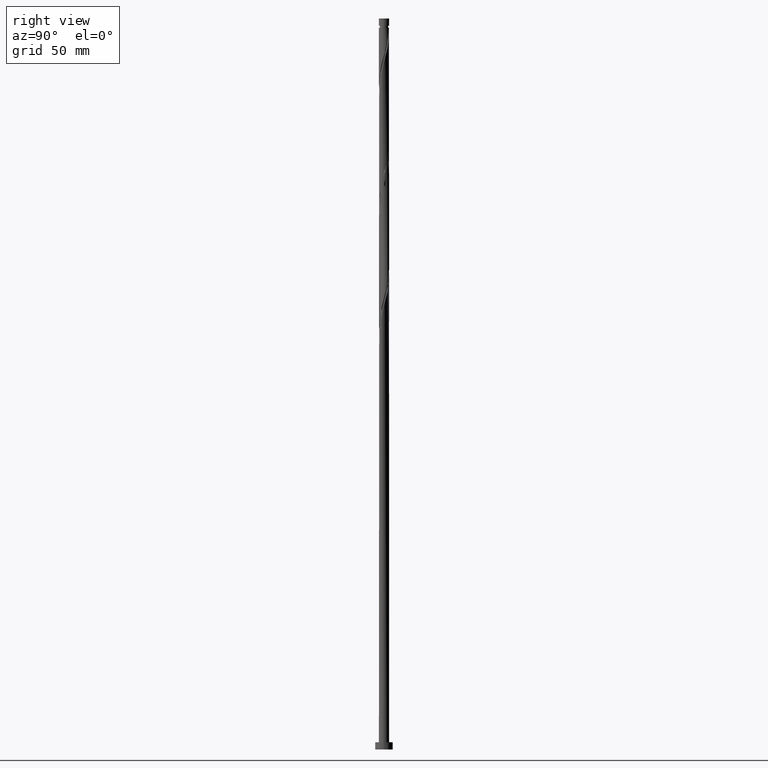
[diagram: clean part render]
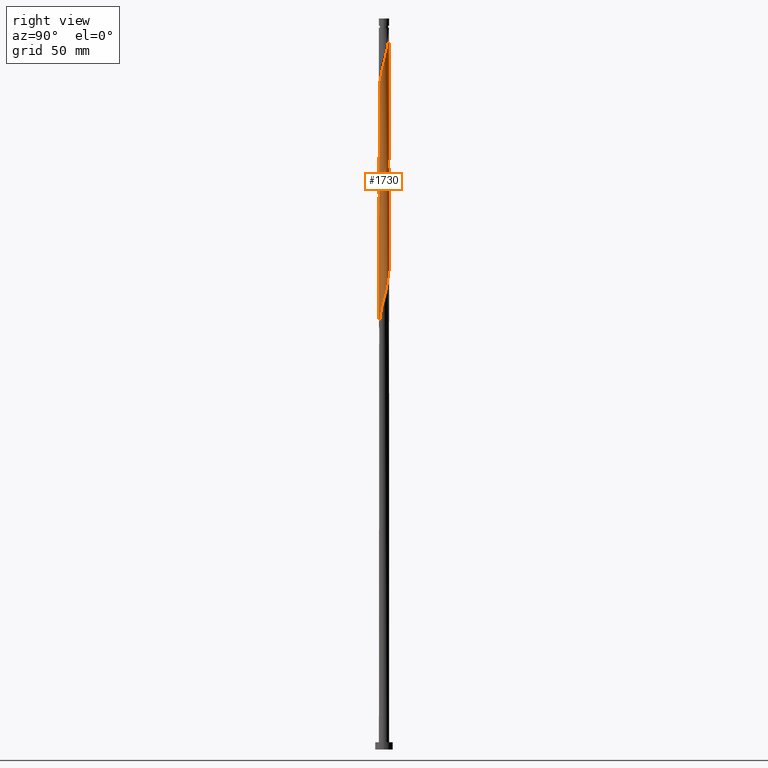
[diagram: same view with one face highlighted and labeled with its STEP entity id]
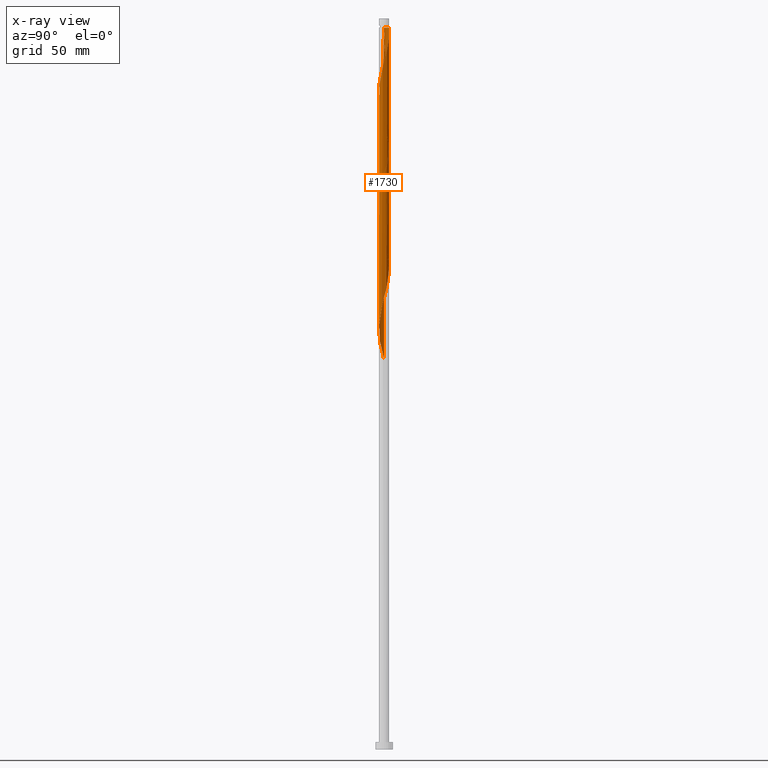
[diagram: x-ray of the same camera — body ghosted, the highlighted face saturated]
A machine part, right view. The second image highlights one B-rep face of the part: STEP entity #1730.
The next image is the same camera in x-ray: the body ghosted, the highlighted face saturated — about 0% of this face is hidden behind the body in this view.
In plain terms, the highlighted cylindrical surface (bore or boss wall) has radius 3.5 mm, axis along (-0, -0, -1).
Its self-contained STEP definition (entity closure, byte-faithful):
#6 = CARTESIAN_POINT ( 'NONE',  ( 0.6964912059746388717, -3.430000000000003268, 451.9630982235522083 ) ) ;
#7 = EDGE_CURVE ( 'NONE', #717, #657, #689, .T. ) ;
#13 = CARTESIAN_POINT ( 'NONE',  ( -2.917869914251320473, -1.932882604688393346, 274.8797648902188371 ) ) ;
#20 = CARTESIAN_POINT ( 'NONE',  ( 1.007491750486607440, -3.369538869082595589, 375.1401815568857501 ) ) ;
#26 = CARTESIAN_POINT ( 'NONE',  ( -1.352268127265541464, -3.228214818128085195, 282.6922648902188939 ) ) ;
#30 = CARTESIAN_POINT ( 'NONE',  ( 0.3307686559897634604, -3.501346014573782028, 372.5360148902190076 ) ) ;
#57 = AXIS2_PLACEMENT_3D ( 'NONE', #207, #816, #1431 ) ;
#58 = ORIENTED_EDGE ( 'NONE', *, *, #381, .T. ) ;
#67 = VERTEX_POINT ( 'NONE', #1469 ) ;
#75 = CARTESIAN_POINT ( 'NONE',  ( 2.709714269839936129, -2.241936750531291267, 299.6193482235523220 ) ) ;
#83 = CYLINDRICAL_SURFACE ( 'NONE', #57, 3.500000000000000000 ) ;
#86 = CARTESIAN_POINT ( 'NONE',  ( -3.499972205438072859, 0.01394851823490067012, 350.4005982235523788 ) ) ;
#101 = CARTESIAN_POINT ( 'NONE',  ( -3.095028032558539088, 1.670219535041367775, 427.2235148902189508 ) ) ;
#144 = CARTESIAN_POINT ( 'NONE',  ( -2.220267707356660125, -2.727497593990912517, 440.2443482235523220 ) ) ;
#153 = CARTESIAN_POINT ( 'NONE',  ( 3.500000000000000000, 4.286263797015736595E-16, 493.6297648902190076 ) ) ;
#158 = CARTESIAN_POINT ( 'NONE',  ( -1.956078142786329632, -2.902371151199237165, 280.0880982235522652 ) ) ;
#160 = CARTESIAN_POINT ( 'NONE',  ( 3.238890551797164452, 1.326494626253368780, 397.2755982235522652 ) ) ;
#162 =( BOUNDED_CURVE ( )  B_SPLINE_CURVE ( 2, ( #450, #1669, #906, #754, #1510, #766, #459, #1692, #1377, #1980, #927, #144, #623, #1533, #164, #1950, #1367, #935, #1386, #1072, #6, #1220, #1822, #1242, #1842, #332, #1345, #1125, #1866, #1252, #1564, #365, #175, #799, #1114, #521, #1728, #988, #1271, #1138, #500, #201, #212, #1714, #643, #1425, #958, #979, #531, #810, #1853, #785, #1149 ),
 .UNSPECIFIED., .F., .T. ) 
 B_SPLINE_CURVE_WITH_KNOTS ( ( 3, 2, 2, 2, 2, 2, 2, 2, 2, 2, 2, 2, 2, 2, 2, 2, 2, 2, 2, 2, 2, 2, 2, 2, 2, 2, 3 ),
 ( 0.5545286902180872612, 0.5546875000000000000, 0.5625000000000000000, 0.5703125000000000000, 0.5781250000000000000, 0.5859375000000000000, 0.5937500000000000000, 0.6015625000000000000, 0.6093750000000001110, 0.6171875000000001110, 0.6250000000000001110, 0.6328125000000001110, 0.6406250000000001110, 0.6484375000000001110, 0.6562500000000001110, 0.6640625000000001110, 0.6718750000000001110, 0.6796875000000001110, 0.6875000000000001110, 0.6953125000000001110, 0.7031250000000002220, 0.7109375000000002220, 0.7187500000000002220, 0.7265625000000002220, 0.7343750000000002220, 0.7421875000000002220, 0.7500000000000002220 ),
 .UNSPECIFIED. ) 
 CURVE ( )  GEOMETRIC_REPRESENTATION_ITEM ( )  RATIONAL_B_SPLINE_CURVE ( ( 0.9089165573359736516, 0.9090019243628784107, 0.9090909090909701229, 0.9047133878838761190, 0.9090909090909701229, 0.9047133878838761190, 0.9090909090909701229, 0.9047133878838761190, 0.9090909090909701229, 0.9047133878838761190, 0.9090909090909701229, 0.9047133878838761190, 0.9090909090909701229, 0.9047133878838761190, 0.9090909090909701229, 0.9047133878838761190, 0.9090909090909701229, 0.9047133878838761190, 0.9090909090909701229, 0.9047133878838761190, 0.9090909090909701229, 0.9047133878838761190, 0.9090909090909701229, 0.9047133878838761190, 0.9090909090909701229, 0.9047133878838761190, 0.9090909090909701229, 0.9047133878838761190, 0.9090909090909701229, 0.9047133878838761190, 0.9090909090909701229, 0.9047133878838761190, 0.9090909090909701229, 0.9047133878838761190, 0.9090909090909701229, 0.9047133878838761190, 0.9090909090909701229, 0.9047133878838761190, 0.9090909090909701229, 0.9047133878838761190, 0.9090909090909701229, 0.9047133878838761190, 0.9090909090909701229, 0.9047133878838761190, 0.9090909090909701229, 0.9047133878838761190, 0.9090909090909701229, 0.9047133878838761190, 0.9090909090909701229, 0.9047133878838761190, 0.9090909090909701229, 0.9047133878838760079, 0.9090909090909702339 ) ) 
 REPRESENTATION_ITEM ( '' )  );
#164 = CARTESIAN_POINT ( 'NONE',  ( -1.326494626253372111, -3.238890551797168005, 444.1505982235523220 ) ) ;
#169 = CARTESIAN_POINT ( 'NONE',  ( 1.645497502020132119, -3.108242234511732427, 294.4110148902188371 ) ) ;
#174 = CARTESIAN_POINT ( 'NONE',  ( 3.228214818128085195, -1.352268127265541464, 386.8589315568855795 ) ) ;
#175 = CARTESIAN_POINT ( 'NONE',  ( 3.435442441828192806, -0.6691302032381893916, 467.5880982235523788 ) ) ;
#178 = EDGE_LOOP ( 'NONE', ( #801, #836, #1285, #58, #235, #355, #634, #1611 ) ) ;
#182 = CARTESIAN_POINT ( 'NONE',  ( 0.6691302032381857279, -3.435442441828187476, 290.5047648902188939 ) ) ;
#187 = CARTESIAN_POINT ( 'NONE',  ( 1.645497502020132119, -3.108242234511732427, 377.7443482235522083 ) ) ;
#194 = CARTESIAN_POINT ( 'NONE',  ( 2.727497593990911184, 2.220267707356653464, 401.1818482235522652 ) ) ;
#201 = CARTESIAN_POINT ( 'NONE',  ( 2.709714269839941014, 2.241936750531293487, 479.3068482235524925 ) ) ;
#207 = CARTESIAN_POINT ( 'NONE',  ( 0.000000000000000000, 0.000000000000000000, 500.0000000000000000 ) ) ;
#211 = CARTESIAN_POINT ( 'NONE',  ( -2.727497593990910296, -2.220267707356655240, 359.5151815568855795 ) ) ;
#212 = CARTESIAN_POINT ( 'NONE',  ( 2.464990988598299904, 2.484717172261102558, 480.6089315568856932 ) ) ;
#221 = CARTESIAN_POINT ( 'NONE',  ( 3.499972205438073303, -0.01394851823490035093, 392.0672648902189508 ) ) ;
#234 = CARTESIAN_POINT ( 'NONE',  ( 3.369538869082595589, 1.007491750486607218, 312.6401815568855227 ) ) ;
#235 = ORIENTED_EDGE ( 'NONE', *, *, #406, .F. ) ;
#243 = CARTESIAN_POINT ( 'NONE',  ( -3.228214818128085195, 1.352268127265539910, 345.1922648902189508 ) ) ;
#253 = CARTESIAN_POINT ( 'NONE',  ( -2.902371151199237165, 1.956078142786329632, 342.5880982235523220 ) ) ;
#271 = CARTESIAN_POINT ( 'NONE',  ( -2.220267707356654796, 2.727497593990910296, 422.0151815568854659 ) ) ;
#277 = CARTESIAN_POINT ( 'NONE',  ( -0.6691302032381861720, 3.435442441828187476, 415.5047648902188939 ) ) ;
#299 = CARTESIAN_POINT ( 'NONE',  ( 2.727497593990911184, 2.220267707356653464, 317.8485148902188939 ) ) ;
#311 =( BOUNDED_CURVE ( )  B_SPLINE_CURVE ( 2, ( #1436, #1124, #221, #1405, #499, #1241, #174, #1396, #509, #1841, #1727, #1885, #364, #187, #482, #20, #1414, #30, #947, #353, #631, #957, #1573, #1251, #491, #1563, #653, #211, #819, #1102, #1424, #520, #978, #1749, #86, #1467, #1290, #1303, #243, #1015, #253, #549, #1616, #1166, #1172, #1768, #1804, #696, #412, #998, #1349, #1626, #888, #1903, #738, #1053, #1204, #842, #443, #299, #1309, #901, #404, #234, #851, #1446, #541, #385, #687, #1894, #1505, #530, #1148, #75, #749, #1975, #913, #169, #780, #793, #182, #1686, #1237, #1527, #1673, #1516, #26, #952, #158, #930, #1963, #477, #13, #1066, #1391, #1382, #1546, #637, #495 ),
 .UNSPECIFIED., .F., .T. ) 
 B_SPLINE_CURVE_WITH_KNOTS ( ( 3, 2, 2, 2, 2, 2, 2, 2, 2, 2, 2, 2, 2, 2, 2, 2, 2, 2, 2, 2, 2, 2, 2, 2, 2, 2, 2, 2, 2, 2, 2, 2, 2, 2, 2, 2, 2, 2, 2, 2, 2, 2, 2, 2, 2, 2, 2, 2, 2, 3 ),
 ( 0.5545286902180871502, 0.5546875000000000000, 0.5625000000000000000, 0.5703125000000000000, 0.5781250000000000000, 0.5859375000000000000, 0.5937500000000000000, 0.6015625000000000000, 0.6093750000000000000, 0.6171875000000000000, 0.6250000000000000000, 0.6328125000000000000, 0.6406250000000000000, 0.6484375000000000000, 0.6562500000000000000, 0.6640625000000000000, 0.6718750000000000000, 0.6796875000000000000, 0.6875000000000000000, 0.6953125000000000000, 0.7031250000000000000, 0.7109375000000000000, 0.7187500000000000000, 0.7265625000000000000, 0.7343750000000000000, 0.7421875000000000000, 0.7500000000000000000, 0.7578125000000000000, 0.7656250000000000000, 0.7734375000000000000, 0.7812500000000000000, 0.7890625000000000000, 0.7968750000000000000, 0.8046875000000000000, 0.8125000000000000000, 0.8203125000000000000, 0.8281250000000000000, 0.8359375000000000000, 0.8437500000000000000, 0.8515625000000000000, 0.8593750000000000000, 0.8671875000000000000, 0.8750000000000000000, 0.8828125000000000000, 0.8906250000000000000, 0.8984375000000000000, 0.9062500000000000000, 0.9140625000000000000, 0.9218750000000000000, 0.9295286902180872612 ),
 .UNSPECIFIED. ) 
 CURVE ( )  GEOMETRIC_REPRESENTATION_ITEM ( )  RATIONAL_B_SPLINE_CURVE ( ( 0.9089165573359687667, 0.9090019243628735257, 0.9090909090909653489, 0.9047133878838712340, 0.9090909090909653489, 0.9047133878838712340, 0.9090909090909653489, 0.9047133878838712340, 0.9090909090909653489, 0.9047133878838712340, 0.9090909090909653489, 0.9047133878838712340, 0.9090909090909653489, 0.9047133878838712340, 0.9090909090909653489, 0.9047133878838712340, 0.9090909090909653489, 0.9047133878838712340, 0.9090909090909653489, 0.9047133878838712340, 0.9090909090909653489, 0.9047133878838712340, 0.9090909090909653489, 0.9047133878838712340, 0.9090909090909653489, 0.9047133878838712340, 0.9090909090909653489, 0.9047133878838712340, 0.9090909090909653489, 0.9047133878838712340, 0.9090909090909653489, 0.9047133878838712340, 0.9090909090909653489, 0.9047133878838712340, 0.9090909090909653489, 0.9047133878838712340, 0.9090909090909653489, 0.9047133878838712340, 0.9090909090909653489, 0.9047133878838712340, 0.9090909090909653489, 0.9047133878838712340, 0.9090909090909653489, 0.9047133878838712340, 0.9090909090909653489, 0.9047133878838712340, 0.9090909090909653489, 0.9047133878838712340, 0.9090909090909653489, 0.9047133878838712340, 0.9090909090909653489, 0.9047133878838712340, 0.9090909090909653489, 0.9047133878838712340, 0.9090909090909653489, 0.9047133878838712340, 0.9090909090909653489, 0.9047133878838712340, 0.9090909090909653489, 0.9047133878838712340, 0.9090909090909653489, 0.9047133878838712340, 0.9090909090909653489, 0.9047133878838712340, 0.9090909090909653489, 0.9047133878838712340, 0.9090909090909653489, 0.9047133878838712340, 0.9090909090909653489, 0.9047133878838712340, 0.9090909090909653489, 0.9047133878838712340, 0.9090909090909653489, 0.9047133878838712340, 0.9090909090909653489, 0.9047133878838712340, 0.9090909090909653489, 0.9047133878838712340, 0.9090909090909653489, 0.9047133878838712340, 0.9090909090909653489, 0.9047133878838712340, 0.9090909090909653489, 0.9047133878838712340, 0.9090909090909653489, 0.9047133878838712340, 0.9090909090909653489, 0.9047133878838712340, 0.9090909090909653489, 0.9047133878838712340, 0.9090909090909653489, 0.9047133878838712340, 0.9090909090909653489, 0.9047133878838712340, 0.9090909090909653489, 0.9047133878838712340, 0.9090909090909653489, 0.9048023726119630572, 0.9089165573359687667 ) ) 
 REPRESENTATION_ITEM ( '' )  );
#331 = CARTESIAN_POINT ( 'NONE',  ( -3.500000000000000000, 0.000000000000000000, 500.0000000000000000 ) ) ;
#332 = CARTESIAN_POINT ( 'NONE',  ( 2.241936750531293931, -2.709714269839941014, 458.4735148902190076 ) ) ;
#353 = CARTESIAN_POINT ( 'NONE',  ( -0.3586656924595654772, -3.498598396302364577, 369.9318482235522083 ) ) ;
#355 = ORIENTED_EDGE ( 'NONE', *, *, #7, .F. ) ;
#364 = CARTESIAN_POINT ( 'NONE',  ( 1.932882604688393346, -2.917869914251321362, 379.0464315568856932 ) ) ;
#365 = CARTESIAN_POINT ( 'NONE',  ( 3.369538869082599586, -1.007491750486610105, 466.2860148902190645 ) ) ;
#381 = EDGE_CURVE ( 'NONE', #1512, #1731, #1283, .T. ) ;
#385 = CARTESIAN_POINT ( 'NONE',  ( 3.498598396302364577, -0.3586656924595672535, 307.4318482235523788 ) ) ;
#404 = CARTESIAN_POINT ( 'NONE',  ( 3.238890551797164452, 1.326494626253368780, 313.9422648902188371 ) ) ;
#406 = EDGE_CURVE ( 'NONE', #657, #1731, #311, .T. ) ;
#411 = CARTESIAN_POINT ( 'NONE',  ( -3.429999999999999272, 0.6964912059746389827, 431.1297648902189508 ) ) ;
#412 = CARTESIAN_POINT ( 'NONE',  ( -0.6691302032381861720, 3.435442441828187476, 332.1714315568855227 ) ) ;
#421 = CARTESIAN_POINT ( 'NONE',  ( -1.326494626253369669, 3.238890551797163564, 418.1089315568855227 ) ) ;
#434 = EDGE_CURVE ( 'NONE', #678, #67, #640, .T. ) ;
#439 = CARTESIAN_POINT ( 'NONE',  ( 0.6964912059746396489, 3.429999999999999272, 410.2964315568856364 ) ) ;
#443 = CARTESIAN_POINT ( 'NONE',  ( 2.484717172261099893, 2.464990988598295907, 319.1505982235522652 ) ) ;
#450 = CARTESIAN_POINT ( 'NONE',  ( -3.500000000000005329, 1.465902249526861745E-15, 428.4729012455554198 ) ) ;
#456 = DIRECTION ( 'NONE',  ( -0.000000000000000000, -0.000000000000000000, -1.000000000000000000 ) ) ;
#459 = CARTESIAN_POINT ( 'NONE',  ( -3.228214818128090524, -1.352268127265541242, 433.7339315568856364 ) ) ;
#467 = CARTESIAN_POINT ( 'NONE',  ( -3.500000000000005329, 1.465902249526861745E-15, 428.4729012455554198 ) ) ;
#477 = CARTESIAN_POINT ( 'NONE',  ( -2.727497593990910296, -2.220267707356655240, 276.1818482235522652 ) ) ;
#482 = CARTESIAN_POINT ( 'NONE',  ( 1.326494626253369002, -3.238890551797164452, 376.4422648902189508 ) ) ;
#486 = CARTESIAN_POINT ( 'NONE',  ( 3.500000000000000888, 0.3376793522514339174, 393.3959419736319205 ) ) ;
#491 = CARTESIAN_POINT ( 'NONE',  ( -1.956078142786329632, -2.902371151199237165, 363.4214315568856364 ) ) ;
#495 = CARTESIAN_POINT ( 'NONE',  ( -3.499999999999999112, -6.113362210359989773E-16, 267.1199618682157393 ) ) ;
#499 = CARTESIAN_POINT ( 'NONE',  ( 3.429999999999999272, -0.6964912059746393158, 389.4630982235523220 ) ) ;
#500 = CARTESIAN_POINT ( 'NONE',  ( 2.902371151199241606, 1.956078142786332519, 478.0047648902190076 ) ) ;
#509 = CARTESIAN_POINT ( 'NONE',  ( 2.902371151199235833, -1.956078142786330964, 384.2547648902188939 ) ) ;
#520 = CARTESIAN_POINT ( 'NONE',  ( -3.369538869082595589, -1.007491750486607662, 354.3068482235523220 ) ) ;
#521 = CARTESIAN_POINT ( 'NONE',  ( 3.498598396302370794, 0.3586656924595661433, 471.4943482235523220 ) ) ;
#530 = CARTESIAN_POINT ( 'NONE',  ( 3.095028032558538644, -1.670219535041368442, 302.2235148902189508 ) ) ;
#531 = CARTESIAN_POINT ( 'NONE',  ( 0.6691302032381896137, 3.435442441828192806, 488.4214315568857501 ) ) ;
#541 = CARTESIAN_POINT ( 'NONE',  ( 3.499972205438073303, -0.01394851823490035093, 308.7339315568855795 ) ) ;
#549 = CARTESIAN_POINT ( 'NONE',  ( -2.709714269839936129, 2.241936750531290823, 341.2860148902188939 ) ) ;
#584 = CARTESIAN_POINT ( 'NONE',  ( 0.3586656924595654217, 3.498598396302364577, 411.5985148902189508 ) ) ;
#601 = CARTESIAN_POINT ( 'NONE',  ( 2.484717172261099893, 2.464990988598295907, 402.4839315568856364 ) ) ;
#623 = CARTESIAN_POINT ( 'NONE',  ( -1.932882604688397343, -2.917869914251324914, 441.5464315568856932 ) ) ;
#631 = CARTESIAN_POINT ( 'NONE',  ( -0.6964912059746392048, -3.429999999999999272, 368.6297648902189508 ) ) ;
#634 = ORIENTED_EDGE ( 'NONE', *, *, #7, .T. ) ;
#637 = CARTESIAN_POINT ( 'NONE',  ( -3.500000000000001332, -0.3376793522514293655, 268.3959419736317500 ) ) ;
#638 = CARTESIAN_POINT ( 'NONE',  ( 1.956078142786331409, 2.902371151199235833, 405.0880982235523220 ) ) ;
#640 = CIRCLE ( 'NONE', #899, 3.499999999999952038 ) ;
#643 = CARTESIAN_POINT ( 'NONE',  ( 1.932882604688397565, 2.917869914251324470, 483.2130982235523788 ) ) ;
#653 = CARTESIAN_POINT ( 'NONE',  ( -2.484717172261099893, -2.464990988598296351, 360.8172648902188939 ) ) ;
#657 = VERTEX_POINT ( 'NONE', #869 ) ;
#678 = VERTEX_POINT ( 'NONE', #1200 ) ;
#687 = CARTESIAN_POINT ( 'NONE',  ( 3.429999999999999272, -0.6964912059746393158, 306.1297648902189508 ) ) ;
#689 = LINE ( 'NONE', #1628, #1789 ) ;
#691 = FACE_OUTER_BOUND ( 'NONE', #178, .T. ) ;
#696 = CARTESIAN_POINT ( 'NONE',  ( -1.007491750486607440, 3.369538869082595589, 333.4735148902189508 ) ) ;
#715 = CARTESIAN_POINT ( 'NONE',  ( -2.902371151199237165, 1.956078142786329632, 425.9214315568856364 ) ) ;
#717 = VERTEX_POINT ( 'NONE', #153 ) ;
#730 = CARTESIAN_POINT ( 'NONE',  ( -3.499972205438072859, 0.01394851823490067012, 433.7339315568856932 ) ) ;
#738 = CARTESIAN_POINT ( 'NONE',  ( 1.352268127265541464, 3.228214818128085195, 324.3589315568856364 ) ) ;
#749 = CARTESIAN_POINT ( 'NONE',  ( 2.464990988598295907, -2.484717172261099893, 298.3172648902188939 ) ) ;
#754 = CARTESIAN_POINT ( 'NONE',  ( -3.498598396302370794, -0.3586656924595649221, 429.8276815568856932 ) ) ;
#761 = DIRECTION ( 'NONE',  ( -1.000000000000000000, 0.000000000000000000, 0.000000000000000000 ) ) ;
#766 = CARTESIAN_POINT ( 'NONE',  ( -3.361401603697638851, -1.034316719489713376, 432.4318482235522652 ) ) ;
#780 = CARTESIAN_POINT ( 'NONE',  ( 1.326494626253369002, -3.238890551797164452, 293.1089315568856364 ) ) ;
#785 = CARTESIAN_POINT ( 'NONE',  ( -0.3586656924595756912, 3.498598396302370350, 492.3276815568856932 ) ) ;
#793 = CARTESIAN_POINT ( 'NONE',  ( 1.007491750486607440, -3.369538869082595589, 291.8068482235523220 ) ) ;
#799 = CARTESIAN_POINT ( 'NONE',  ( 3.501346014573786913, -0.3307686559897658474, 468.8901815568856364 ) ) ;
#801 = ORIENTED_EDGE ( 'NONE', *, *, #1515, .F. ) ;
#810 = CARTESIAN_POINT ( 'NONE',  ( 0.3307686559897658474, 3.501346014573786913, 489.7235148902190076 ) ) ;
#816 = DIRECTION ( 'NONE',  ( -0.000000000000000000, -0.000000000000000000, -1.000000000000000000 ) ) ;
#819 = CARTESIAN_POINT ( 'NONE',  ( -2.917869914251320473, -1.932882604688393346, 358.2130982235522652 ) ) ;
#836 = ORIENTED_EDGE ( 'NONE', *, *, #434, .T. ) ;
#839 = CARTESIAN_POINT ( 'NONE',  ( -3.499999999999999112, -6.113362210359989773E-16, 267.1199618682157393 ) ) ;
#842 = CARTESIAN_POINT ( 'NONE',  ( 2.241936750531291267, 2.709714269839936129, 320.4526815568856364 ) ) ;
#851 = CARTESIAN_POINT ( 'NONE',  ( 3.435442441828187032, 0.6691302032381868381, 311.3380982235522083 ) ) ;
#857 =( BOUNDED_CURVE ( )  B_SPLINE_CURVE ( 2, ( #1633, #903, #730, #1795, #411, #1474, #1786, #101, #715, #1034, #1927, #271, #1640, #1180, #421, #875, #277, #882, #1340, #584, #439, #1046, #1559, #1099, #638, #941, #601, #194, #1837, #923, #160, #1529, #953, #486, #1538 ),
 .UNSPECIFIED., .F., .T. ) 
 B_SPLINE_CURVE_WITH_KNOTS ( ( 3, 2, 2, 2, 2, 2, 2, 2, 2, 2, 2, 2, 2, 2, 2, 2, 2, 3 ),
 ( 0.4295286902180872057, 0.4296875000000000000, 0.4375000000000000000, 0.4453125000000000000, 0.4531250000000000000, 0.4609375000000000000, 0.4687500000000000000, 0.4765625000000000000, 0.4843750000000000000, 0.4921875000000000000, 0.5000000000000000000, 0.5078125000000000000, 0.5156250000000000000, 0.5234375000000000000, 0.5312500000000000000, 0.5390625000000000000, 0.5468750000000000000, 0.5545286902180871502 ),
 .UNSPECIFIED. ) 
 CURVE ( )  GEOMETRIC_REPRESENTATION_ITEM ( )  RATIONAL_B_SPLINE_CURVE ( ( 0.9089165573359687667, 0.9090019243628735257, 0.9090909090909653489, 0.9047133878838712340, 0.9090909090909653489, 0.9047133878838712340, 0.9090909090909653489, 0.9047133878838712340, 0.9090909090909653489, 0.9047133878838712340, 0.9090909090909653489, 0.9047133878838712340, 0.9090909090909653489, 0.9047133878838712340, 0.9090909090909653489, 0.9047133878838712340, 0.9090909090909653489, 0.9047133878838712340, 0.9090909090909653489, 0.9047133878838712340, 0.9090909090909653489, 0.9047133878838712340, 0.9090909090909653489, 0.9047133878838712340, 0.9090909090909653489, 0.9047133878838712340, 0.9090909090909653489, 0.9047133878838712340, 0.9090909090909653489, 0.9047133878838712340, 0.9090909090909653489, 0.9047133878838712340, 0.9090909090909653489, 0.9048023726119630572, 0.9089165573359687667 ) ) 
 REPRESENTATION_ITEM ( '' )  );
#869 = CARTESIAN_POINT ( 'NONE',  ( 3.500000000000000000, 9.039575219587180141E-16, 392.1199618682157961 ) ) ;
#875 = CARTESIAN_POINT ( 'NONE',  ( -1.007491750486607440, 3.369538869082595589, 416.8068482235523220 ) ) ;
#882 = CARTESIAN_POINT ( 'NONE',  ( -0.3307686559897644041, 3.501346014573782028, 414.2026815568856364 ) ) ;
#888 = CARTESIAN_POINT ( 'NONE',  ( 0.6964912059746396489, 3.429999999999999272, 326.9630982235522083 ) ) ;
#899 = AXIS2_PLACEMENT_3D ( 'NONE', #1216, #1847, #761 ) ;
#901 = CARTESIAN_POINT ( 'NONE',  ( 3.108242234511731983, 1.645497502020133007, 315.2443482235523220 ) ) ;
#903 = CARTESIAN_POINT ( 'NONE',  ( -3.499999999999999556, 0.006974286809916272617, 433.7602749803652955 ) ) ;
#906 = CARTESIAN_POINT ( 'NONE',  ( -3.499972205438078632, -0.01394851823489984613, 428.5255982235523788 ) ) ;
#913 = CARTESIAN_POINT ( 'NONE',  ( 1.932882604688393346, -2.917869914251321362, 295.7130982235522652 ) ) ;
#923 = CARTESIAN_POINT ( 'NONE',  ( 3.108242234511731983, 1.645497502020133007, 398.5776815568856364 ) ) ;
#927 = CARTESIAN_POINT ( 'NONE',  ( -2.464990988598299460, -2.484717172261102558, 438.9422648902188939 ) ) ;
#930 = CARTESIAN_POINT ( 'NONE',  ( -2.241936750531290823, -2.709714269839936129, 278.7860148902190076 ) ) ;
#935 = CARTESIAN_POINT ( 'NONE',  ( -0.3307686559897656253, -3.501346014573786913, 448.0568482235523788 ) ) ;
#941 = CARTESIAN_POINT ( 'NONE',  ( 2.241936750531291267, 2.709714269839936129, 403.7860148902190076 ) ) ;
#947 = CARTESIAN_POINT ( 'NONE',  ( -0.01394851823490014277, -3.499972205438073303, 371.2339315568855795 ) ) ;
#952 = CARTESIAN_POINT ( 'NONE',  ( -1.670219535041367775, -3.095028032558538644, 281.3901815568855795 ) ) ;
#953 = CARTESIAN_POINT ( 'NONE',  ( 3.435442441828187032, 0.6691302032381868381, 394.6714315568856364 ) ) ;
#957 = CARTESIAN_POINT ( 'NONE',  ( -1.034316719489712710, -3.361401603697633078, 367.3276815568856364 ) ) ;
#958 = CARTESIAN_POINT ( 'NONE',  ( 1.326494626253372111, 3.238890551797167561, 485.8172648902190645 ) ) ;
#978 = CARTESIAN_POINT ( 'NONE',  ( -3.435442441828187476, -0.6691302032381858389, 353.0047648902189508 ) ) ;
#979 = CARTESIAN_POINT ( 'NONE',  ( 1.007491750486610549, 3.369538869082599142, 487.1193482235523788 ) ) ;
#988 = CARTESIAN_POINT ( 'NONE',  ( 3.361401603697638851, 1.034316719489711378, 474.0985148902190645 ) ) ;
#998 = CARTESIAN_POINT ( 'NONE',  ( -0.3307686559897644041, 3.501346014573782028, 330.8693482235523788 ) ) ;
#1015 = CARTESIAN_POINT ( 'NONE',  ( -3.095028032558539088, 1.670219535041367775, 343.8901815568856364 ) ) ;
#1020 = EDGE_CURVE ( 'NONE', #1512, #67, #162, .T. ) ;
#1034 = CARTESIAN_POINT ( 'NONE',  ( -2.709714269839936129, 2.241936750531290823, 424.6193482235523220 ) ) ;
#1046 = CARTESIAN_POINT ( 'NONE',  ( 1.034316719489711378, 3.361401603697633522, 408.9943482235522652 ) ) ;
#1053 = CARTESIAN_POINT ( 'NONE',  ( 1.670219535041368442, 3.095028032558538644, 323.0568482235523220 ) ) ;
#1066 = CARTESIAN_POINT ( 'NONE',  ( -3.108242234511732427, -1.645497502020132119, 273.5776815568855227 ) ) ;
#1072 = CARTESIAN_POINT ( 'NONE',  ( 0.3586656924595647000, -3.498598396302370794, 450.6610148902191213 ) ) ;
#1089 = LINE ( 'NONE', #1248, #1463 ) ;
#1099 = CARTESIAN_POINT ( 'NONE',  ( 1.670219535041368442, 3.095028032558538644, 406.3901815568855795 ) ) ;
#1102 = CARTESIAN_POINT ( 'NONE',  ( -3.108242234511732427, -1.645497502020132119, 356.9110148902188939 ) ) ;
#1114 = CARTESIAN_POINT ( 'NONE',  ( 3.499972205438078632, 0.01394851823489856243, 470.1922648902190076 ) ) ;
#1124 = CARTESIAN_POINT ( 'NONE',  ( 3.500000000000000000, -0.006974286809913530019, 392.0936083136984962 ) ) ;
#1125 = CARTESIAN_POINT ( 'NONE',  ( 2.727497593990912073, -2.220267707356660125, 461.0776815568856932 ) ) ;
#1138 = CARTESIAN_POINT ( 'NONE',  ( 3.095028032558544862, 1.670219535041368664, 476.7026815568856932 ) ) ;
#1148 = CARTESIAN_POINT ( 'NONE',  ( 2.902371151199235833, -1.956078142786330964, 300.9214315568854659 ) ) ;
#1149 = CARTESIAN_POINT ( 'NONE',  ( -0.6964912059747360162, 3.430000000000974048, 493.6297648902190076 ) ) ;
#1166 = CARTESIAN_POINT ( 'NONE',  ( -2.220267707356654796, 2.727497593990910296, 338.6818482235523220 ) ) ;
#1172 = CARTESIAN_POINT ( 'NONE',  ( -1.932882604688393346, 2.917869914251320917, 337.3797648902190076 ) ) ;
#1180 = CARTESIAN_POINT ( 'NONE',  ( -1.645497502020132563, 3.108242234511732427, 419.4110148902190076 ) ) ;
#1200 = CARTESIAN_POINT ( 'NONE',  ( -3.499999999999952038, 0.000000000000000000, 493.6297648902189508 ) ) ;
#1204 = CARTESIAN_POINT ( 'NONE',  ( 1.956078142786331409, 2.902371151199235833, 321.7547648902188939 ) ) ;
#1216 = CARTESIAN_POINT ( 'NONE',  ( 0.000000000000000000, 0.000000000000000000, 493.6297648902189508 ) ) ;
#1220 = CARTESIAN_POINT ( 'NONE',  ( 1.034316719489713154, -3.361401603697638851, 453.2651815568856932 ) ) ;
#1237 = CARTESIAN_POINT ( 'NONE',  ( -0.01394851823490014277, -3.499972205438073303, 287.9005982235522652 ) ) ;
#1241 = CARTESIAN_POINT ( 'NONE',  ( 3.361401603697633522, -1.034316719489711378, 388.1610148902189508 ) ) ;
#1242 = CARTESIAN_POINT ( 'NONE',  ( 1.670219535041369330, -3.095028032558544862, 455.8693482235523220 ) ) ;
#1248 = CARTESIAN_POINT ( 'NONE',  ( -3.500000000000000000, 0.000000000000000000, 500.0000000000000000 ) ) ;
#1251 = CARTESIAN_POINT ( 'NONE',  ( -1.670219535041367775, -3.095028032558538644, 364.7235148902189508 ) ) ;
#1252 = CARTESIAN_POINT ( 'NONE',  ( 3.108242234511735980, -1.645497502020138114, 463.6818482235524357 ) ) ;
#1257 = VECTOR ( 'NONE', #1541, 1000.000000000000000 ) ;
#1271 = CARTESIAN_POINT ( 'NONE',  ( 3.228214818128089636, 1.352268127265541686, 475.4005982235523220 ) ) ;
#1283 = LINE ( 'NONE', #331, #1257 ) ;
#1285 = ORIENTED_EDGE ( 'NONE', *, *, #1020, .F. ) ;
#1290 = CARTESIAN_POINT ( 'NONE',  ( -3.429999999999999272, 0.6964912059746389827, 347.7964315568856932 ) ) ;
#1303 = CARTESIAN_POINT ( 'NONE',  ( -3.361401603697633078, 1.034316719489712710, 346.4943482235522652 ) ) ;
#1309 = CARTESIAN_POINT ( 'NONE',  ( 2.917869914251320917, 1.932882604688393124, 316.5464315568856364 ) ) ;
#1313 = EDGE_CURVE ( 'NONE', #1317, #657, #857, .T. ) ;
#1317 = VERTEX_POINT ( 'NONE', #1848 ) ;
#1340 = CARTESIAN_POINT ( 'NONE',  ( 0.01394851823490045675, 3.499972205438072859, 412.9005982235522652 ) ) ;
#1345 = CARTESIAN_POINT ( 'NONE',  ( 2.484717172261102558, -2.464990988598299904, 459.7755982235523788 ) ) ;
#1349 = CARTESIAN_POINT ( 'NONE',  ( 0.01394851823490045675, 3.499972205438072859, 329.5672648902188939 ) ) ;
#1367 = CARTESIAN_POINT ( 'NONE',  ( -0.6691302032381876153, -3.435442441828192806, 446.7547648902190076 ) ) ;
#1377 = CARTESIAN_POINT ( 'NONE',  ( -2.902371151199242050, -1.956078142786330964, 436.3380982235522083 ) ) ;
#1382 = CARTESIAN_POINT ( 'NONE',  ( -3.369538869082595589, -1.007491750486607662, 270.9735148902188939 ) ) ;
#1386 = CARTESIAN_POINT ( 'NONE',  ( 0.01394851823489888683, -3.499972205438078632, 449.3589315568856932 ) ) ;
#1391 = CARTESIAN_POINT ( 'NONE',  ( -3.238890551797164008, -1.326494626253369002, 272.2755982235522652 ) ) ;
#1396 = CARTESIAN_POINT ( 'NONE',  ( 3.095028032558538644, -1.670219535041368442, 385.5568482235522652 ) ) ;
#1405 = CARTESIAN_POINT ( 'NONE',  ( 3.498598396302364577, -0.3586656924595672535, 390.7651815568855227 ) ) ;
#1414 = CARTESIAN_POINT ( 'NONE',  ( 0.6691302032381857279, -3.435442441828187476, 373.8380982235523220 ) ) ;
#1424 = CARTESIAN_POINT ( 'NONE',  ( -3.238890551797164008, -1.326494626253369002, 355.6089315568855795 ) ) ;
#1425 = CARTESIAN_POINT ( 'NONE',  ( 1.645497502020138114, 3.108242234511735091, 484.5151815568856932 ) ) ;
#1431 = DIRECTION ( 'NONE',  ( -1.000000000000000000, 0.000000000000000000, 0.000000000000000000 ) ) ;
#1436 = CARTESIAN_POINT ( 'NONE',  ( 3.500000000000000000, 9.039575219587180141E-16, 392.1199618682157961 ) ) ;
#1446 = CARTESIAN_POINT ( 'NONE',  ( 3.501346014573782028, 0.3307686559897632939, 310.0360148902189508 ) ) ;
#1449 = DIRECTION ( 'NONE',  ( -0.000000000000000000, -0.000000000000000000, -1.000000000000000000 ) ) ;
#1463 = VECTOR ( 'NONE', #456, 1000.000000000000000 ) ;
#1467 = CARTESIAN_POINT ( 'NONE',  ( -3.498598396302364577, 0.3586656924595653662, 349.0985148902189508 ) ) ;
#1469 = CARTESIAN_POINT ( 'NONE',  ( -0.6964912059747360162, 3.430000000000974048, 493.6297648902190076 ) ) ;
#1474 = CARTESIAN_POINT ( 'NONE',  ( -3.361401603697633078, 1.034316719489712710, 429.8276815568856364 ) ) ;
#1505 = CARTESIAN_POINT ( 'NONE',  ( 3.228214818128085195, -1.352268127265541464, 303.5255982235522652 ) ) ;
#1510 = CARTESIAN_POINT ( 'NONE',  ( -3.430000000000003268, -0.6964912059746392048, 431.1297648902188939 ) ) ;
#1512 = VERTEX_POINT ( 'NONE', #467 ) ;
#1515 = EDGE_CURVE ( 'NONE', #678, #1317, #1089, .T. ) ;
#1516 = CARTESIAN_POINT ( 'NONE',  ( -1.034316719489712710, -3.361401603697633078, 283.9943482235523788 ) ) ;
#1527 = CARTESIAN_POINT ( 'NONE',  ( -0.3586656924595654772, -3.498598396302364577, 286.5985148902190076 ) ) ;
#1529 = CARTESIAN_POINT ( 'NONE',  ( 3.369538869082595589, 1.007491750486607218, 395.9735148902190076 ) ) ;
#1533 = CARTESIAN_POINT ( 'NONE',  ( -1.645497502020135450, -3.108242234511735980, 442.8485148902190076 ) ) ;
#1538 = CARTESIAN_POINT ( 'NONE',  ( 3.500000000000000000, 9.039575219587180141E-16, 392.1199618682157961 ) ) ;
#1541 = DIRECTION ( 'NONE',  ( -0.000000000000000000, -0.000000000000000000, -1.000000000000000000 ) ) ;
#1546 = CARTESIAN_POINT ( 'NONE',  ( -3.435442441828187476, -0.6691302032381858389, 269.6714315568855795 ) ) ;
#1559 = CARTESIAN_POINT ( 'NONE',  ( 1.352268127265541464, 3.228214818128085195, 407.6922648902189508 ) ) ;
#1563 = CARTESIAN_POINT ( 'NONE',  ( -2.241936750531290823, -2.709714269839936129, 362.1193482235522083 ) ) ;
#1564 = CARTESIAN_POINT ( 'NONE',  ( 3.238890551797167561, -1.326494626253372111, 464.9839315568856932 ) ) ;
#1573 = CARTESIAN_POINT ( 'NONE',  ( -1.352268127265541464, -3.228214818128085195, 366.0255982235522652 ) ) ;
#1611 = ORIENTED_EDGE ( 'NONE', *, *, #1313, .F. ) ;
#1616 = CARTESIAN_POINT ( 'NONE',  ( -2.464990988598295907, 2.484717172261100337, 339.9839315568856364 ) ) ;
#1626 = CARTESIAN_POINT ( 'NONE',  ( 0.3586656924595654217, 3.498598396302364577, 328.2651815568856364 ) ) ;
#1628 = CARTESIAN_POINT ( 'NONE',  ( 3.500000000000000000, 4.286263797015736595E-16, 500.0000000000000000 ) ) ;
#1633 = CARTESIAN_POINT ( 'NONE',  ( -3.499999999999999112, -6.113362210359989773E-16, 433.7866285348825386 ) ) ;
#1640 = CARTESIAN_POINT ( 'NONE',  ( -1.932882604688393346, 2.917869914251320917, 420.7130982235523220 ) ) ;
#1669 = CARTESIAN_POINT ( 'NONE',  ( -3.500000000000004885, -0.006974286809917869430, 428.4992548000727197 ) ) ;
#1673 = CARTESIAN_POINT ( 'NONE',  ( -0.6964912059746392048, -3.429999999999999272, 285.2964315568855795 ) ) ;
#1686 = CARTESIAN_POINT ( 'NONE',  ( 0.3307686559897634604, -3.501346014573782028, 289.2026815568856364 ) ) ;
#1692 = CARTESIAN_POINT ( 'NONE',  ( -3.095028032558544862, -1.670219535041369330, 435.0360148902189508 ) ) ;
#1714 = CARTESIAN_POINT ( 'NONE',  ( 2.220267707356658793, 2.727497593990913849, 481.9110148902190645 ) ) ;
#1727 = CARTESIAN_POINT ( 'NONE',  ( 2.464990988598295907, -2.484717172261099893, 381.6505982235523788 ) ) ;
#1728 = CARTESIAN_POINT ( 'NONE',  ( 3.430000000000003268, 0.6964912059746386497, 472.7964315568856932 ) ) ;
#1730 = ADVANCED_FACE ( 'NONE', ( #691 ), #83, .T. ) ;
#1731 = VERTEX_POINT ( 'NONE', #839 ) ;
#1749 = CARTESIAN_POINT ( 'NONE',  ( -3.501346014573782028, -0.3307686559897636824, 351.7026815568856364 ) ) ;
#1768 = CARTESIAN_POINT ( 'NONE',  ( -1.645497502020132563, 3.108242234511732427, 336.0776815568856364 ) ) ;
#1786 = CARTESIAN_POINT ( 'NONE',  ( -3.228214818128085195, 1.352268127265539910, 428.5255982235522652 ) ) ;
#1789 = VECTOR ( 'NONE', #1449, 1000.000000000000000 ) ;
#1795 = CARTESIAN_POINT ( 'NONE',  ( -3.498598396302364577, 0.3586656924595653662, 432.4318482235522652 ) ) ;
#1804 = CARTESIAN_POINT ( 'NONE',  ( -1.326494626253369669, 3.238890551797163564, 334.7755982235522083 ) ) ;
#1822 = CARTESIAN_POINT ( 'NONE',  ( 1.352268127265541908, -3.228214818128089636, 454.5672648902188939 ) ) ;
#1837 = CARTESIAN_POINT ( 'NONE',  ( 2.917869914251320917, 1.932882604688393124, 399.8797648902188939 ) ) ;
#1841 = CARTESIAN_POINT ( 'NONE',  ( 2.709714269839936129, -2.241936750531291267, 382.9526815568855227 ) ) ;
#1842 = CARTESIAN_POINT ( 'NONE',  ( 1.956078142786331409, -2.902371151199242494, 457.1714315568855795 ) ) ;
#1847 = DIRECTION ( 'NONE',  ( -0.000000000000000000, -0.000000000000000000, -1.000000000000000000 ) ) ;
#1848 = CARTESIAN_POINT ( 'NONE',  ( -3.499999999999999112, -6.113362210359989773E-16, 433.7866285348824817 ) ) ;
#1853 = CARTESIAN_POINT ( 'NONE',  ( -0.01394851823489835253, 3.499972205438078632, 491.0255982235522652 ) ) ;
#1866 = CARTESIAN_POINT ( 'NONE',  ( 2.917869914251324914, -1.932882604688397343, 462.3797648902190076 ) ) ;
#1885 = CARTESIAN_POINT ( 'NONE',  ( 2.220267707356653908, -2.727497593990911184, 380.3485148902189508 ) ) ;
#1894 = CARTESIAN_POINT ( 'NONE',  ( 3.361401603697633522, -1.034316719489711378, 304.8276815568855795 ) ) ;
#1903 = CARTESIAN_POINT ( 'NONE',  ( 1.034316719489711378, 3.361401603697633522, 325.6610148902188939 ) ) ;
#1927 = CARTESIAN_POINT ( 'NONE',  ( -2.464990988598295907, 2.484717172261100337, 423.3172648902189508 ) ) ;
#1950 = CARTESIAN_POINT ( 'NONE',  ( -1.007491750486610105, -3.369538869082599586, 445.4526815568856932 ) ) ;
#1963 = CARTESIAN_POINT ( 'NONE',  ( -2.484717172261099893, -2.464990988598296351, 277.4839315568855795 ) ) ;
#1975 = CARTESIAN_POINT ( 'NONE',  ( 2.220267707356653908, -2.727497593990911184, 297.0151815568855227 ) ) ;
#1980 = CARTESIAN_POINT ( 'NONE',  ( -2.709714269839941014, -2.241936750531294376, 437.6401815568856932 ) ) ;